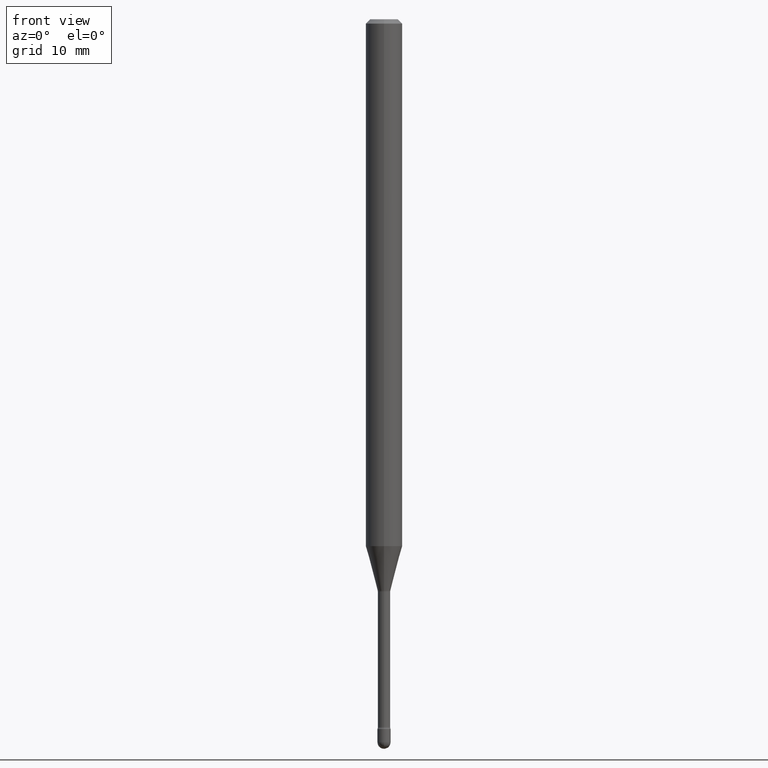
[diagram: clean part render]
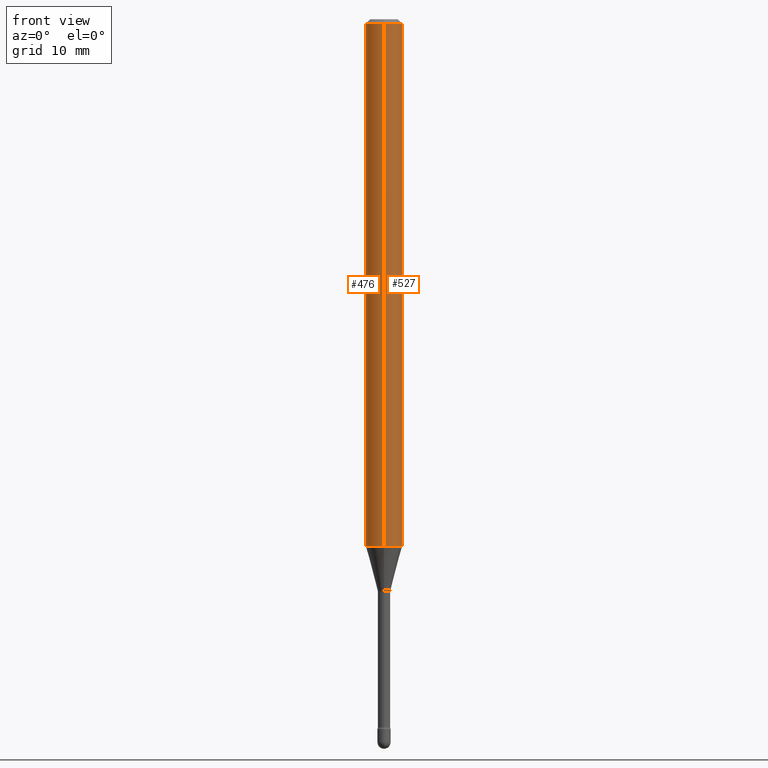
[diagram: same view with one multi-face feature highlighted, each face labeled with its STEP entity id]
A machine part, front view. The highlighted faces form ONE feature: a constant-radius fillet chain: 2 tangent blend faces with common blend radius 1.5875 mm. The faces share edges in the B-rep.
Their STEP definitions:
[1] entity #527 (Cylinder):
#1 = VERTEX_POINT ( 'NONE', #420 ) ;
#5 = VECTOR ( 'NONE', #415, 39.37007874015748143 ) ;
#20 = DIRECTION ( 'NONE',  ( -6.982962677686265922E-15, -1.000000000000000000, 4.370956789862821150E-15 ) ) ;
#25 = DIRECTION ( 'NONE',  ( -2.445426571026095552E-29, 3.491541821994768116E-15, 1.000000000000000000 ) ) ;
#32 = CARTESIAN_POINT ( 'NONE',  ( 4.440892098501069896E-16, 0.06249999999999995143, -0.01500000000000030129 ) ) ;
#41 = EDGE_CURVE ( 'NONE', #395, #1, #481, .T. ) ;
#74 = DIRECTION ( 'NONE',  ( -2.445426571026095552E-29, 3.491541821994768116E-15, 1.000000000000000000 ) ) ;
#98 = VERTEX_POINT ( 'NONE', #156 ) ;
#107 = CARTESIAN_POINT ( 'NONE',  ( -4.364351673553475918E-16, -0.06250000000000632827, -1.805679699107026970 ) ) ;
#113 = EDGE_CURVE ( 'NONE', #1, #397, #406, .T. ) ;
#123 = EDGE_CURVE ( 'NONE', #98, #397, #358, .T. ) ;
#124 = DIRECTION ( 'NONE',  ( -6.982962677686265922E-15, -1.000000000000000000, 3.483106191921935554E-15 ) ) ;
#129 = CARTESIAN_POINT ( 'NONE',  ( -4.364351673553916201E-16, -0.06250000000000000000, 6.962947627659190459E-16 ) ) ;
#149 = CARTESIAN_POINT ( 'NONE',  ( 4.415657114958730253E-29, -6.304606186559115346E-15, -1.805679699107027192 ) ) ;
#156 = CARTESIAN_POINT ( 'NONE',  ( -4.364351673553912750E-16, -0.06250000000000005551, -0.01499999999999986587 ) ) ;
#179 = ORIENTED_EDGE ( 'NONE', *, *, #113, .T. ) ;
#208 = LINE ( 'NONE', #129, #5 ) ;
#247 = EDGE_LOOP ( 'NONE', ( #431, #179, #508, #306 ) ) ;
#264 = CARTESIAN_POINT ( 'NONE',  ( -1.169113584055446105E-44, 1.669184350826100908E-30, 4.780733988912460139E-16 ) ) ;
#306 = ORIENTED_EDGE ( 'NONE', *, *, #474, .F. ) ;
#317 = DIRECTION ( 'NONE',  ( -6.982962677686265922E-15, -1.000000000000000000, 3.491541821994766933E-15 ) ) ;
#357 = DIRECTION ( 'NONE',  ( -2.445426571026095552E-29, 3.491541821994768116E-15, 1.000000000000000000 ) ) ;
#358 = CIRCLE ( 'NONE', #402, 0.06250000000000000000 ) ;
#389 = DIRECTION ( 'NONE',  ( -2.445426571026095552E-29, 3.491541821994768116E-15, 1.000000000000000000 ) ) ;
#395 = VERTEX_POINT ( 'NONE', #107 ) ;
#397 = VERTEX_POINT ( 'NONE', #32 ) ;
#402 = AXIS2_PLACEMENT_3D ( 'NONE', #511, #389, #124 ) ;
#406 = LINE ( 'NONE', #455, #489 ) ;
#415 = DIRECTION ( 'NONE',  ( -2.445426571026095552E-29, 3.491541821994768116E-15, 1.000000000000000000 ) ) ;
#420 = CARTESIAN_POINT ( 'NONE',  ( 4.440892098501065952E-16, 0.06249999999999367173, -1.805679699107027414 ) ) ;
#431 = ORIENTED_EDGE ( 'NONE', *, *, #41, .T. ) ;
#435 = AXIS2_PLACEMENT_3D ( 'NONE', #149, #74, #20 ) ;
#455 = CARTESIAN_POINT ( 'NONE',  ( 4.440892098500625669E-16, 0.06250000000000000000, 2.598520350165730806E-16 ) ) ;
#457 = AXIS2_PLACEMENT_3D ( 'NONE', #264, #357, #317 ) ;
#474 = EDGE_CURVE ( 'NONE', #395, #98, #208, .T. ) ;
#478 = FACE_OUTER_BOUND ( 'NONE', #247, .T. ) ;
#481 = CIRCLE ( 'NONE', #435, 0.06250000000000000000 ) ;
#489 = VECTOR ( 'NONE', #25, 39.37007874015748143 ) ;
#508 = ORIENTED_EDGE ( 'NONE', *, *, #123, .F. ) ;
#511 = CARTESIAN_POINT ( 'NONE',  ( 3.668139856539163560E-31, -5.237312732992181560E-17, -0.01500000000000008271 ) ) ;
#526 = CYLINDRICAL_SURFACE ( 'NONE', #457, 0.06250000000000000000 ) ;
#527 = ADVANCED_FACE ( 'NONE', ( #478 ), #526, .T. ) ;
[2] entity #476 (Cylinder):
#1 = VERTEX_POINT ( 'NONE', #420 ) ;
#5 = VECTOR ( 'NONE', #415, 39.37007874015748143 ) ;
#25 = DIRECTION ( 'NONE',  ( -2.445426571026095552E-29, 3.491541821994768116E-15, 1.000000000000000000 ) ) ;
#32 = CARTESIAN_POINT ( 'NONE',  ( 4.440892098501069896E-16, 0.06249999999999995143, -0.01500000000000030129 ) ) ;
#49 = ORIENTED_EDGE ( 'NONE', *, *, #113, .F. ) ;
#52 = CARTESIAN_POINT ( 'NONE',  ( 3.668139856539163560E-31, -5.237312732992181560E-17, -0.01500000000000008271 ) ) ;
#55 = EDGE_LOOP ( 'NONE', ( #49, #414, #502, #103 ) ) ;
#78 = DIRECTION ( 'NONE',  ( -6.982962677686265922E-15, -1.000000000000000000, 4.370956789862821150E-15 ) ) ;
#92 = CARTESIAN_POINT ( 'NONE',  ( -1.169113584055446105E-44, 1.669184350826100908E-30, 4.780733988912460139E-16 ) ) ;
#98 = VERTEX_POINT ( 'NONE', #156 ) ;
#103 = ORIENTED_EDGE ( 'NONE', *, *, #510, .F. ) ;
#107 = CARTESIAN_POINT ( 'NONE',  ( -4.364351673553475918E-16, -0.06250000000000632827, -1.805679699107026970 ) ) ;
#113 = EDGE_CURVE ( 'NONE', #1, #397, #406, .T. ) ;
#119 = EDGE_CURVE ( 'NONE', #1, #395, #401, .T. ) ;
#129 = CARTESIAN_POINT ( 'NONE',  ( -4.364351673553916201E-16, -0.06250000000000000000, 6.962947627659190459E-16 ) ) ;
#141 = DIRECTION ( 'NONE',  ( -6.982962677686265922E-15, -1.000000000000000000, 3.483106191921935554E-15 ) ) ;
#156 = CARTESIAN_POINT ( 'NONE',  ( -4.364351673553912750E-16, -0.06250000000000005551, -0.01499999999999986587 ) ) ;
#208 = LINE ( 'NONE', #129, #5 ) ;
#244 = AXIS2_PLACEMENT_3D ( 'NONE', #370, #408, #78 ) ;
#301 = FACE_OUTER_BOUND ( 'NONE', #55, .T. ) ;
#305 = AXIS2_PLACEMENT_3D ( 'NONE', #92, #332, #453 ) ;
#332 = DIRECTION ( 'NONE',  ( -2.445426571026095552E-29, 3.491541821994768116E-15, 1.000000000000000000 ) ) ;
#370 = CARTESIAN_POINT ( 'NONE',  ( 4.415657114958730253E-29, -6.304606186559115346E-15, -1.805679699107027192 ) ) ;
#385 = DIRECTION ( 'NONE',  ( -2.445426571026095552E-29, 3.491541821994768116E-15, 1.000000000000000000 ) ) ;
#395 = VERTEX_POINT ( 'NONE', #107 ) ;
#397 = VERTEX_POINT ( 'NONE', #32 ) ;
#401 = CIRCLE ( 'NONE', #244, 0.06250000000000000000 ) ;
#406 = LINE ( 'NONE', #455, #489 ) ;
#408 = DIRECTION ( 'NONE',  ( -2.445426571026095552E-29, 3.491541821994768116E-15, 1.000000000000000000 ) ) ;
#414 = ORIENTED_EDGE ( 'NONE', *, *, #119, .T. ) ;
#415 = DIRECTION ( 'NONE',  ( -2.445426571026095552E-29, 3.491541821994768116E-15, 1.000000000000000000 ) ) ;
#420 = CARTESIAN_POINT ( 'NONE',  ( 4.440892098501065952E-16, 0.06249999999999367173, -1.805679699107027414 ) ) ;
#423 = CIRCLE ( 'NONE', #436, 0.06250000000000000000 ) ;
#436 = AXIS2_PLACEMENT_3D ( 'NONE', #52, #385, #141 ) ;
#453 = DIRECTION ( 'NONE',  ( -6.982962677686265922E-15, -1.000000000000000000, 3.491541821994766933E-15 ) ) ;
#455 = CARTESIAN_POINT ( 'NONE',  ( 4.440892098500625669E-16, 0.06250000000000000000, 2.598520350165730806E-16 ) ) ;
#465 = CYLINDRICAL_SURFACE ( 'NONE', #305, 0.06250000000000000000 ) ;
#474 = EDGE_CURVE ( 'NONE', #395, #98, #208, .T. ) ;
#476 = ADVANCED_FACE ( 'NONE', ( #301 ), #465, .T. ) ;
#489 = VECTOR ( 'NONE', #25, 39.37007874015748143 ) ;
#502 = ORIENTED_EDGE ( 'NONE', *, *, #474, .T. ) ;
#510 = EDGE_CURVE ( 'NONE', #397, #98, #423, .T. ) ;